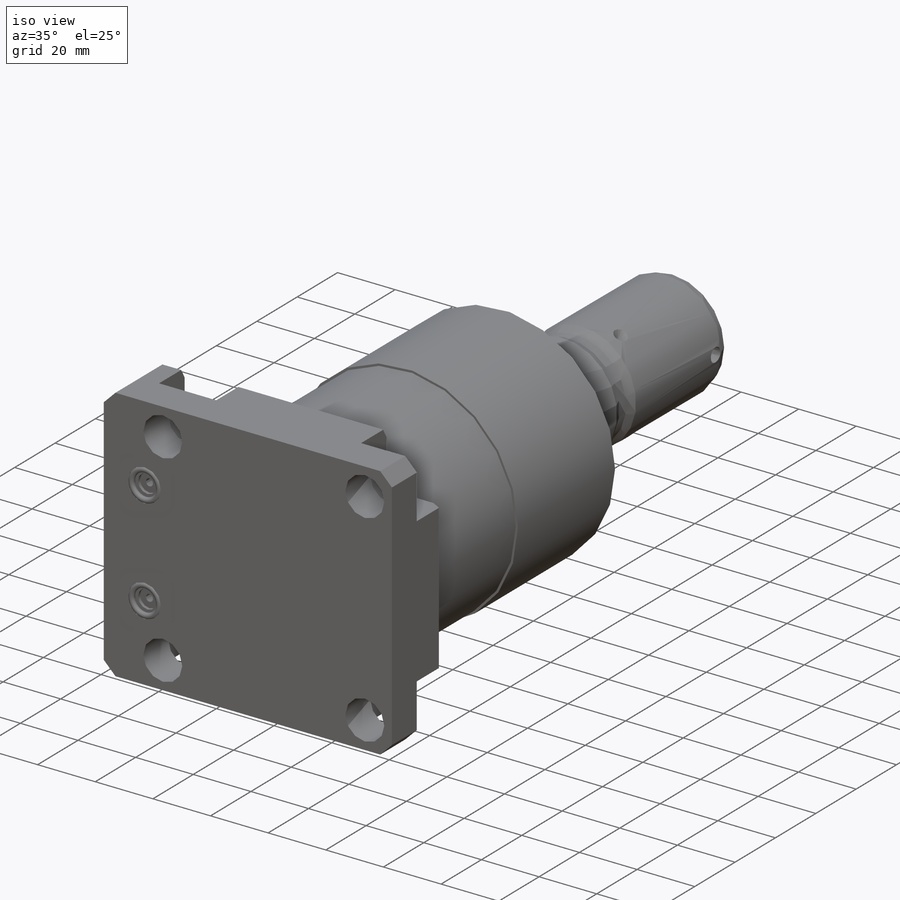
[diagram: iso view]
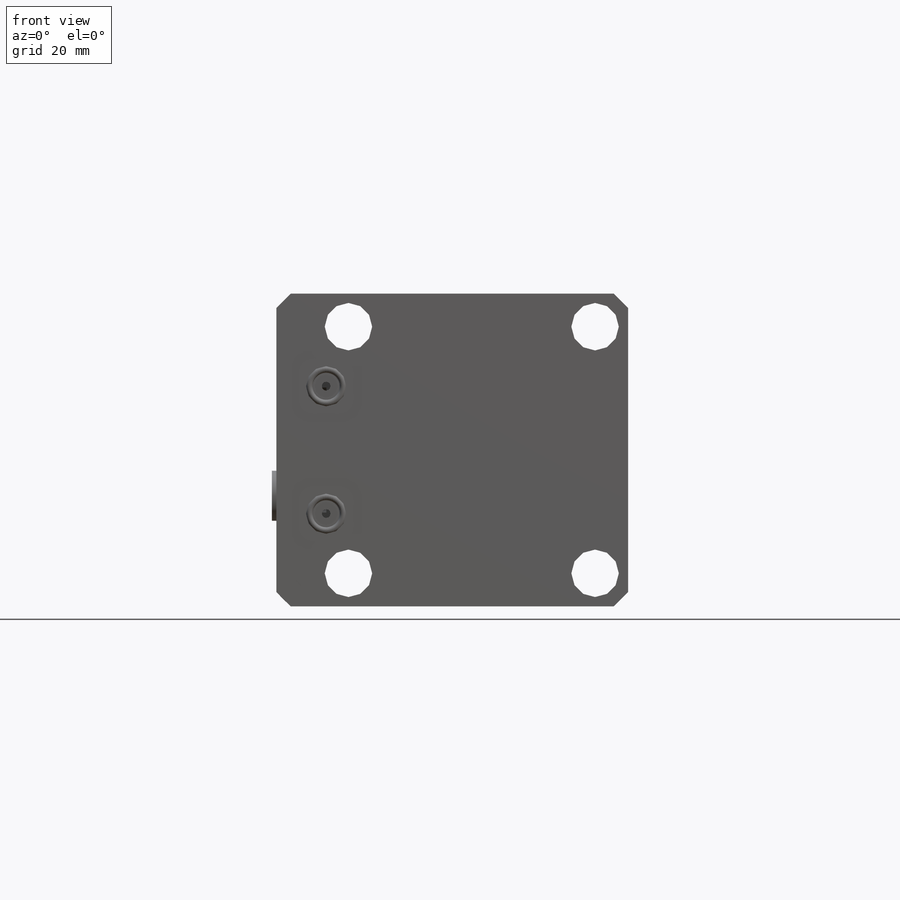
[diagram: front view]
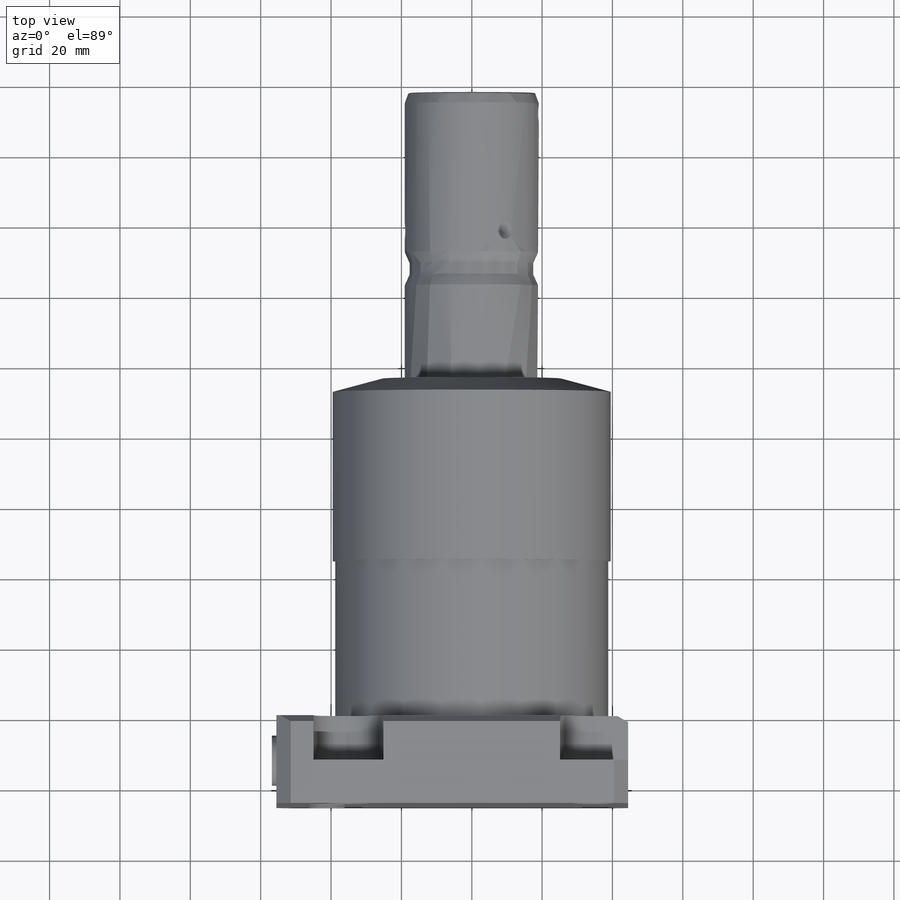
[diagram: top view]
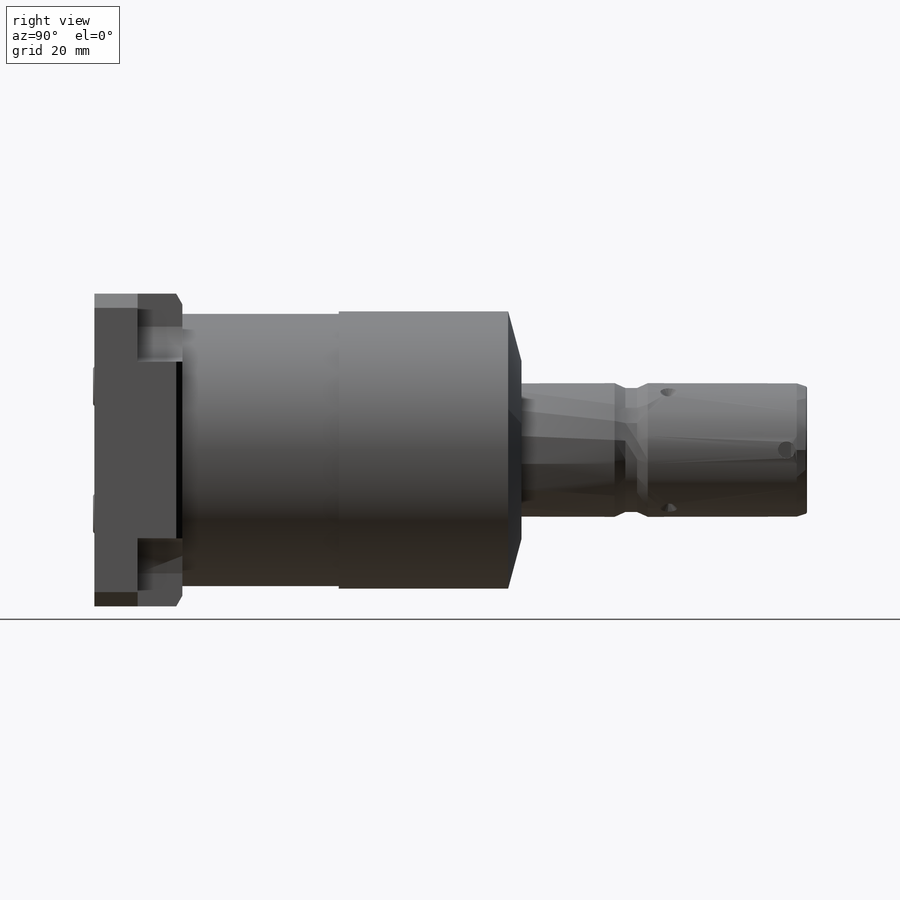
[diagram: right view]
SOLIDWORKS PART (.sldprt)
format: sldprt  version: not decoded by parser v0  size: 519,168 bytes
history: native  units: mm
features: sketch x18, plane x12, cut_extrude x8, cut_revolve x5, extrude x3, pattern_linear x2, revolve x2, chamfer x2, material x1, pattern_circular x1, fillet x1 (+13 scaffold rows collapsed)
feature tree (68):
  scaffold x13  (default folders/planes/origin — collapsed)
  material  "Alloy Steel"
  plane  "Plane1"
  sketch  "Sketch1"  dims[D1=99.9998mm D2=88.9mm D3=44.45mm D4=44.45mm]
  extrude  "Extrude1"  Depth=25.019mm
  sketch  "Sketch2"  dims[D2=13.4874mm D1=35.052mm D3=35.052mm]
  cut_extrude  "Cut-Extrude1"  Depth=27.5209mm
  plane  "Plane2"
  plane  "Plane3"
  plane  "Plane4"
  plane  "Plane5"
  pattern_linear  "LPattern1"  Count1=2 Count2=2 Spacing1=70.104mm Spacing2=70.104mm
  sketch  "Sketch3"  dims[D1=9.9314mm]
  cut_extrude  "Cut-Extrude2"  Depth=12.7mm
  plane  "Plane6"
  sketch  "S2D0007"  dims[D1=0.254mm]
  cut_revolve  "Cut-Revolve1"  Angle=360deg
  plane  "Plane7"
  sketch  "Sketch5"  dims[D1=0.254mm]
  cut_revolve  "Cut-Revolve2"  Angle=360deg
  sketch  "Sketch6"  dims[D4=11.4046mm D1=18.1102mm D2=36.2204mm D3=41.402mm]
  cut_extrude  "Cut-Extrude3"  Depth=1.4478mm
  sketch  "Sketch7"  dims[D1=6.5024mm]
  cut_extrude  "Cut-Extrude4"  Depth=1.016mm
  sketch  "Sketch8"  dims[D1=2.4892mm]
  cut_extrude  "Cut-Extrude5"  Depth=11.9888mm
  plane  "Plane16"
  sketch  "Sketch9"  dims[D1=1.8542mm D2=9.5504mm]
  revolve  "Revolve1"  Angle=360deg
  pattern_linear  "LPattern3"  Count1=2 Count2=1 Spacing1=36.2204mm Spacing2=2.54mm
  plane  "Plane11"
  chamfer  "Chamfer1"  Distance=4.064mm Angle=45deg
  chamfer  "Chamfer2"  Distance=3.0226mm Angle=30deg
  sketch  "Sketch14"  dims[D1=79.0448mm]
  extrude  "Extrude2"  Depth=96.393mm
  sketch  "Sketch15"  dims[D1=77.5716mm]
  cut_extrude  "Cut-Extrude9"  Depth=44.45mm
  plane  "Plane13"
  sketch  "Sketch16"  dims[c1.D1=50.8mm c1.D2=14.1224mm c2.D2=15.0deg]
  cut_revolve  "Cut-Revolve3"  Angle=360deg
  plane  "Plane14"
  sketch  "Sketch17"  dims[c1.D2=1.016mm c1.D4=7.9248mm c1.D5=7.9248mm c1.D1=202.5904mm c1.D3=38.1mm c2.D5=35.0012mm c2.D6=49.9872mm c2.D2=1.016mm c3.D2=20.0deg c3.D7=2.921mm]
  revolve  "Revolve3"  Angle=360deg
  plane  "Plane15"
  sketch  "Sketch19"  dims[D1=14.224mm]
  extrude  "Extrude3"  Depth=1.524mm
  sketch  "Sketch20"  dims[D1=32.258mm D2=31.496mm]
  cut_extrude  "Cut-Extrude10"  Depth=0.254mm
  sketch  "Sketch21"  dims[D1=8.001mm]
  cut_extrude  "Cut-Extrude11"  Depth=8.001mm
  sketch  "Sketch22"  dims[c1.D1=~4.674355mm c2.D1=45.0deg c2.D2=4.826mm c2.D3=10.668mm]
  cut_revolve  "Cut-Revolve4"  Angle=360deg
  pattern_circular  "CirPattern1"  Count=3 Angle=360deg
  sketch  "Sketch23"  dims[D1=3.81mm D2=4.826mm D3=5.842mm]
  cut_revolve  "Cut-Revolve5"  Angle=360deg
  fillet  "Fillet1"  Radius=0.635mm
decode coverage: 42 of 42 modeling features carry decoded parameters
note: ~ marks probable driven/reference dimensions
note: suppression state not decoded; provenance and decode notes live in map.json
